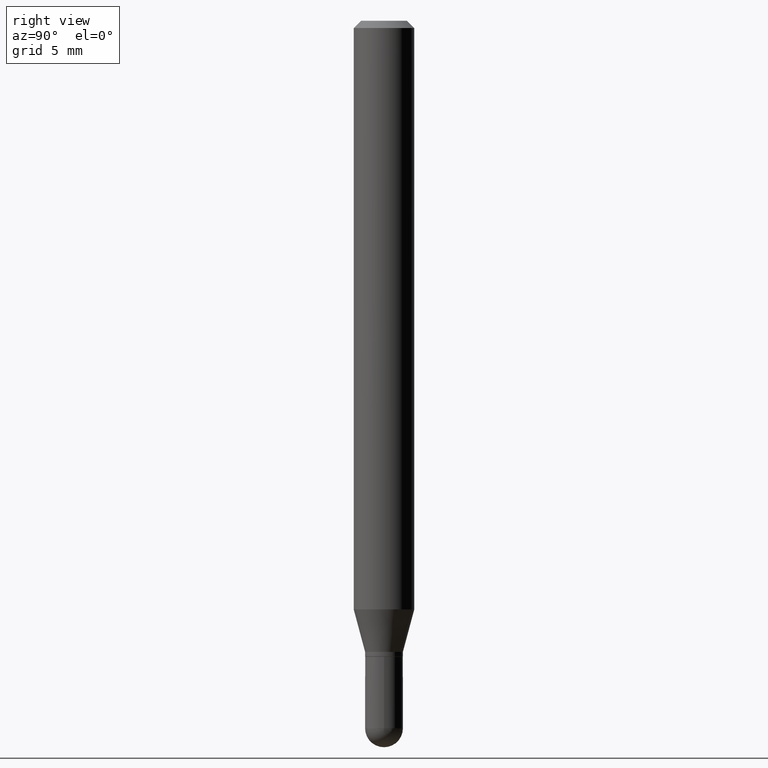
[diagram: clean part render]
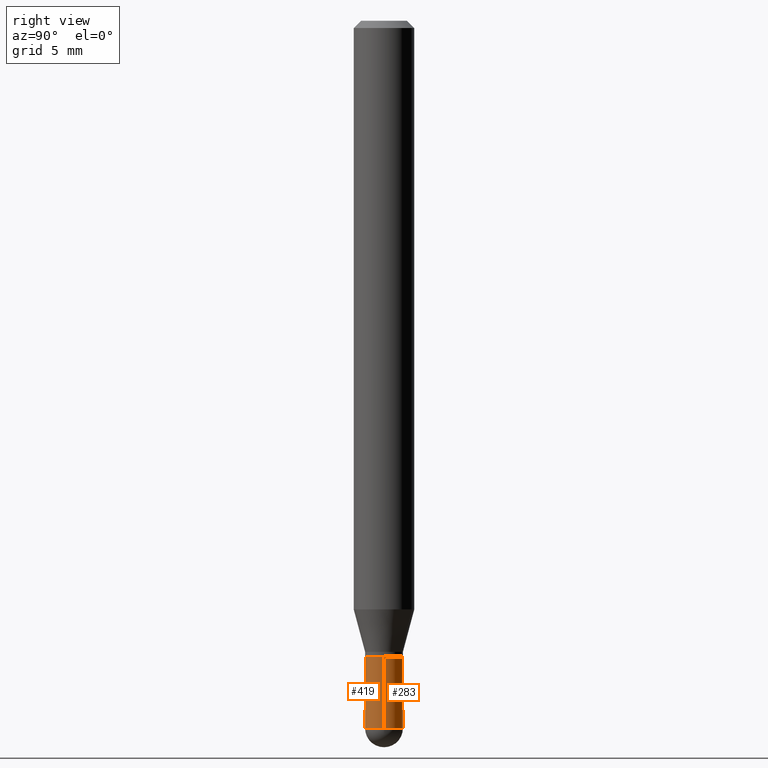
[diagram: same view with one multi-face feature highlighted, each face labeled with its STEP entity id]
A machine part, right view. The highlighted faces form ONE feature: a constant-radius fillet chain: 2 tangent blend faces with common blend radius 0.9919 mm. The faces share edges in the B-rep.
Their STEP definitions:
[1] entity #419 (Cylinder):
#6 = LINE ( 'NONE', #285, #312 ) ;
#23 = VERTEX_POINT ( 'NONE', #144 ) ;
#42 = DIRECTION ( 'NONE',  ( -2.445468806185136597E-29, 3.491481338843145583E-15, 1.000000000000000000 ) ) ;
#61 = EDGE_CURVE ( 'NONE', #320, #23, #109, .T. ) ;
#67 = ORIENTED_EDGE ( 'NONE', *, *, #61, .T. ) ;
#84 = AXIS2_PLACEMENT_3D ( 'NONE', #155, #309, #270 ) ;
#103 = ORIENTED_EDGE ( 'NONE', *, *, #255, .T. ) ;
#109 = CIRCLE ( 'NONE', #152, 0.03905000000000000832 ) ;
#122 = EDGE_CURVE ( 'NONE', #224, #143, #338, .T. ) ;
#125 = LINE ( 'NONE', #438, #128 ) ;
#128 = VECTOR ( 'NONE', #467, 39.37007874015748143 ) ;
#143 = VERTEX_POINT ( 'NONE', #352 ) ;
#144 = CARTESIAN_POINT ( 'NONE',  ( -2.774669383142833871E-16, -0.03905000000000510146, -1.460950000000000193 ) ) ;
#151 = ORIENTED_EDGE ( 'NONE', *, *, #188, .T. ) ;
#152 = AXIS2_PLACEMENT_3D ( 'NONE', #359, #42, #389 ) ;
#155 = CARTESIAN_POINT ( 'NONE',  ( 3.572707652396175485E-29, -5.100879661982893620E-15, -1.460950000000000193 ) ) ;
#188 = EDGE_CURVE ( 'NONE', #23, #449, #271, .T. ) ;
#189 = CARTESIAN_POINT ( 'NONE',  ( 0.03905000000000000832, -5.115282022505621222E-15, -1.460950000000000193 ) ) ;
#197 = DIRECTION ( 'NONE',  ( -2.445468806185136597E-29, 3.491481338843145583E-15, 1.000000000000000000 ) ) ;
#198 = DIRECTION ( 'NONE',  ( 1.000000000000000000, -6.982962677686266711E-15, 0.000000000000000000 ) ) ;
#224 = VERTEX_POINT ( 'NONE', #445 ) ;
#238 = DIRECTION ( 'NONE',  ( -2.445468806185136597E-29, 3.491481338843145583E-15, 1.000000000000000000 ) ) ;
#255 = EDGE_CURVE ( 'NONE', #449, #143, #6, .T. ) ;
#257 = AXIS2_PLACEMENT_3D ( 'NONE', #303, #197, #501 ) ;
#270 = DIRECTION ( 'NONE',  ( 1.000000000000000000, -6.982962677686265133E-15, 0.000000000000000000 ) ) ;
#271 = CIRCLE ( 'NONE', #84, 0.03905000000000000832 ) ;
#285 = CARTESIAN_POINT ( 'NONE',  ( 0.03905000000000000832, -2.726846925636487675E-16, 1.904147030948313202E-30 ) ) ;
#290 = AXIS2_PLACEMENT_3D ( 'NONE', #317, #238, #198 ) ;
#292 = EDGE_LOOP ( 'NONE', ( #326, #67, #151, #103, #411 ) ) ;
#293 = FACE_OUTER_BOUND ( 'NONE', #292, .T. ) ;
#303 = CARTESIAN_POINT ( 'NONE',  ( 0.000000000000000000, 0.000000000000000000, 0.000000000000000000 ) ) ;
#309 = DIRECTION ( 'NONE',  ( -2.445468806185136597E-29, 3.491481338843145583E-15, 1.000000000000000000 ) ) ;
#312 = VECTOR ( 'NONE', #409, 39.37007874015748143 ) ;
#317 = CARTESIAN_POINT ( 'NONE',  ( 3.210900542521084585E-29, -4.584314997901050598E-15, -1.313000000000000167 ) ) ;
#320 = VERTEX_POINT ( 'NONE', #486 ) ;
#326 = ORIENTED_EDGE ( 'NONE', *, *, #410, .F. ) ;
#338 = CIRCLE ( 'NONE', #290, 0.03905000000000000138 ) ;
#352 = CARTESIAN_POINT ( 'NONE',  ( 0.03905000000000000138, -4.856999690464699711E-15, -1.313000000000000167 ) ) ;
#359 = CARTESIAN_POINT ( 'NONE',  ( 3.572707652396175485E-29, -5.100879661982893620E-15, -1.460950000000000193 ) ) ;
#389 = DIRECTION ( 'NONE',  ( 1.000000000000000000, -6.982962677686265133E-15, 0.000000000000000000 ) ) ;
#409 = DIRECTION ( 'NONE',  ( -2.445468806185136877E-29, 3.491481338843145188E-15, 1.000000000000000000 ) ) ;
#410 = EDGE_CURVE ( 'NONE', #320, #224, #125, .T. ) ;
#411 = ORIENTED_EDGE ( 'NONE', *, *, #122, .F. ) ;
#419 = ADVANCED_FACE ( 'NONE', ( #293 ), #421, .T. ) ;
#421 = CYLINDRICAL_SURFACE ( 'NONE', #257, 0.03905000000000000832 ) ;
#438 = CARTESIAN_POINT ( 'NONE',  ( -0.03905000000000000832, 2.774669383143191817E-16, -1.920844152744540988E-30 ) ) ;
#445 = CARTESIAN_POINT ( 'NONE',  ( -0.03905000000000000138, -4.565130391627653569E-15, -1.313000000000000167 ) ) ;
#449 = VERTEX_POINT ( 'NONE', #189 ) ;
#467 = DIRECTION ( 'NONE',  ( -2.445468806185136877E-29, 3.491481338843145188E-15, 1.000000000000000000 ) ) ;
#486 = CARTESIAN_POINT ( 'NONE',  ( -0.03905000000000000832, -4.565130391627653569E-15, -1.460950000000000193 ) ) ;
#501 = DIRECTION ( 'NONE',  ( 1.000000000000000000, -6.982962677686266711E-15, 4.876176775795935232E-29 ) ) ;
[2] entity #283 (Cylinder):
#6 = LINE ( 'NONE', #285, #312 ) ;
#13 = FACE_OUTER_BOUND ( 'NONE', #335, .T. ) ;
#22 = ORIENTED_EDGE ( 'NONE', *, *, #255, .F. ) ;
#46 = CIRCLE ( 'NONE', #210, 0.03905000000000000832 ) ;
#57 = CARTESIAN_POINT ( 'NONE',  ( 0.000000000000000000, 0.000000000000000000, 0.000000000000000000 ) ) ;
#71 = CIRCLE ( 'NONE', #234, 0.03905000000000000138 ) ;
#73 = EDGE_CURVE ( 'NONE', #300, #320, #118, .T. ) ;
#89 = CYLINDRICAL_SURFACE ( 'NONE', #202, 0.03905000000000000832 ) ;
#110 = DIRECTION ( 'NONE',  ( 1.000000000000000000, -6.982962677686266711E-15, 0.000000000000000000 ) ) ;
#118 = CIRCLE ( 'NONE', #407, 0.03905000000000000832 ) ;
#120 = DIRECTION ( 'NONE',  ( -2.445468806185136597E-29, 3.491481338843145583E-15, 1.000000000000000000 ) ) ;
#125 = LINE ( 'NONE', #438, #128 ) ;
#128 = VECTOR ( 'NONE', #467, 39.37007874015748143 ) ;
#136 = ORIENTED_EDGE ( 'NONE', *, *, #410, .T. ) ;
#143 = VERTEX_POINT ( 'NONE', #352 ) ;
#170 = DIRECTION ( 'NONE',  ( -2.445468806185136597E-29, 3.491481338843145583E-15, 1.000000000000000000 ) ) ;
#189 = CARTESIAN_POINT ( 'NONE',  ( 0.03905000000000000832, -5.115282022505621222E-15, -1.460950000000000193 ) ) ;
#190 = ORIENTED_EDGE ( 'NONE', *, *, #73, .T. ) ;
#202 = AXIS2_PLACEMENT_3D ( 'NONE', #57, #170, #277 ) ;
#208 = CARTESIAN_POINT ( 'NONE',  ( 3.572707652396175485E-29, -5.100879661982893620E-15, -1.460950000000000193 ) ) ;
#210 = AXIS2_PLACEMENT_3D ( 'NONE', #208, #442, #291 ) ;
#224 = VERTEX_POINT ( 'NONE', #445 ) ;
#234 = AXIS2_PLACEMENT_3D ( 'NONE', #260, #388, #110 ) ;
#255 = EDGE_CURVE ( 'NONE', #449, #143, #6, .T. ) ;
#260 = CARTESIAN_POINT ( 'NONE',  ( 3.210900542521084585E-29, -4.584314997901050598E-15, -1.313000000000000167 ) ) ;
#261 = EDGE_CURVE ( 'NONE', #449, #300, #46, .T. ) ;
#277 = DIRECTION ( 'NONE',  ( 1.000000000000000000, -6.982962677686266711E-15, 4.876176775795935232E-29 ) ) ;
#283 = ADVANCED_FACE ( 'NONE', ( #13 ), #89, .T. ) ;
#285 = CARTESIAN_POINT ( 'NONE',  ( 0.03905000000000000832, -2.726846925636487675E-16, 1.904147030948313202E-30 ) ) ;
#291 = DIRECTION ( 'NONE',  ( 1.000000000000000000, -6.982962677686265133E-15, 0.000000000000000000 ) ) ;
#294 = ORIENTED_EDGE ( 'NONE', *, *, #465, .F. ) ;
#300 = VERTEX_POINT ( 'NONE', #399 ) ;
#312 = VECTOR ( 'NONE', #409, 39.37007874015748143 ) ;
#320 = VERTEX_POINT ( 'NONE', #486 ) ;
#335 = EDGE_LOOP ( 'NONE', ( #190, #136, #294, #22, #493 ) ) ;
#352 = CARTESIAN_POINT ( 'NONE',  ( 0.03905000000000000138, -4.856999690464699711E-15, -1.313000000000000167 ) ) ;
#388 = DIRECTION ( 'NONE',  ( -2.445468806185136597E-29, 3.491481338843145583E-15, 1.000000000000000000 ) ) ;
#394 = DIRECTION ( 'NONE',  ( 1.000000000000000000, -6.982962677686265133E-15, 0.000000000000000000 ) ) ;
#395 = CARTESIAN_POINT ( 'NONE',  ( 3.572707652396175485E-29, -5.100879661982893620E-15, -1.460950000000000193 ) ) ;
#399 = CARTESIAN_POINT ( 'NONE',  ( 2.726846925636844142E-16, 0.03904999999999489435, -1.460950000000000193 ) ) ;
#407 = AXIS2_PLACEMENT_3D ( 'NONE', #395, #120, #394 ) ;
#409 = DIRECTION ( 'NONE',  ( -2.445468806185136877E-29, 3.491481338843145188E-15, 1.000000000000000000 ) ) ;
#410 = EDGE_CURVE ( 'NONE', #320, #224, #125, .T. ) ;
#438 = CARTESIAN_POINT ( 'NONE',  ( -0.03905000000000000832, 2.774669383143191817E-16, -1.920844152744540988E-30 ) ) ;
#442 = DIRECTION ( 'NONE',  ( -2.445468806185136597E-29, 3.491481338843145583E-15, 1.000000000000000000 ) ) ;
#445 = CARTESIAN_POINT ( 'NONE',  ( -0.03905000000000000138, -4.565130391627653569E-15, -1.313000000000000167 ) ) ;
#449 = VERTEX_POINT ( 'NONE', #189 ) ;
#465 = EDGE_CURVE ( 'NONE', #143, #224, #71, .T. ) ;
#467 = DIRECTION ( 'NONE',  ( -2.445468806185136877E-29, 3.491481338843145188E-15, 1.000000000000000000 ) ) ;
#486 = CARTESIAN_POINT ( 'NONE',  ( -0.03905000000000000832, -4.565130391627653569E-15, -1.460950000000000193 ) ) ;
#493 = ORIENTED_EDGE ( 'NONE', *, *, #261, .T. ) ;